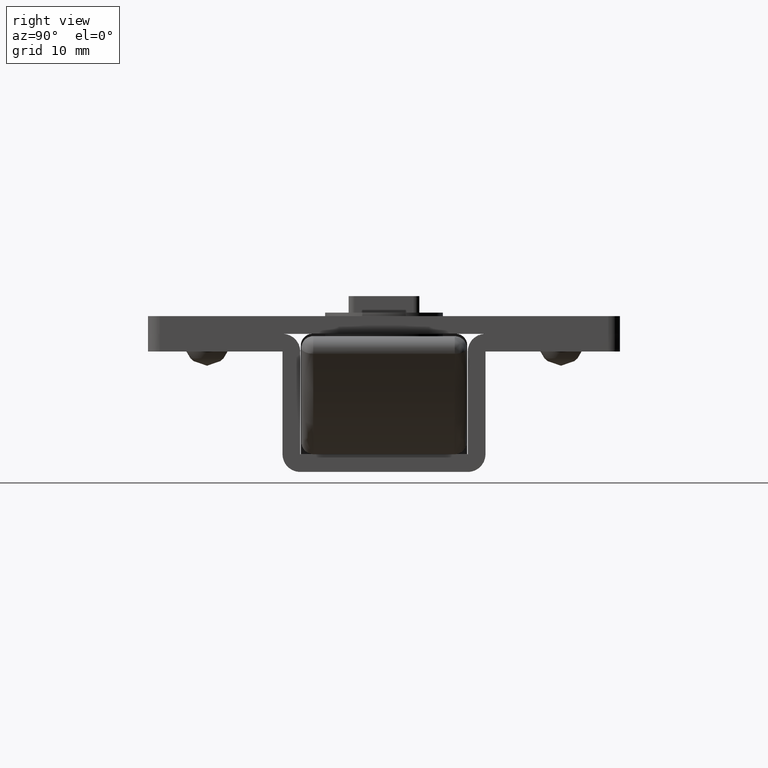
[diagram: clean part render]
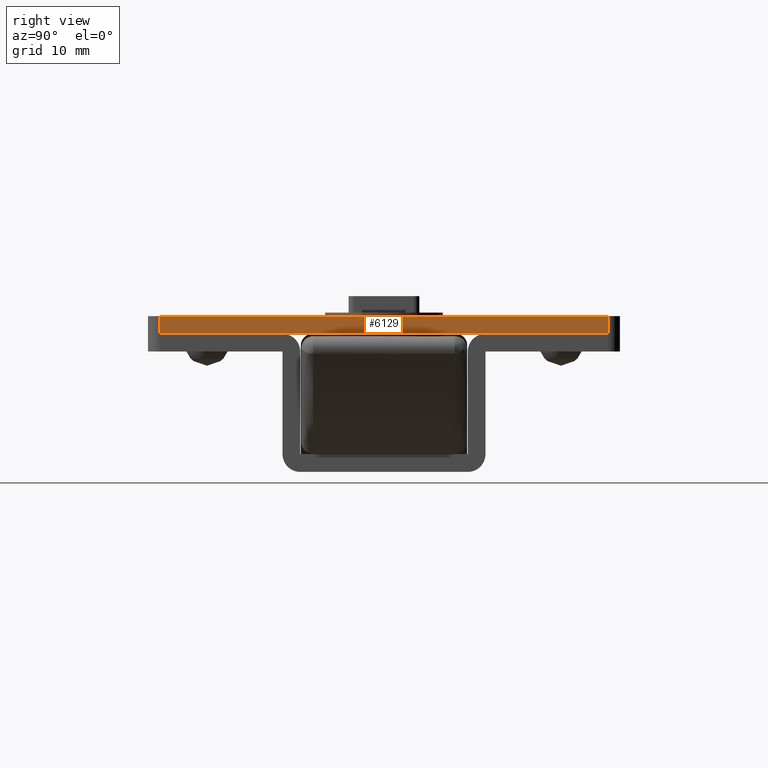
[diagram: same view with one face highlighted and labeled with its STEP entity id]
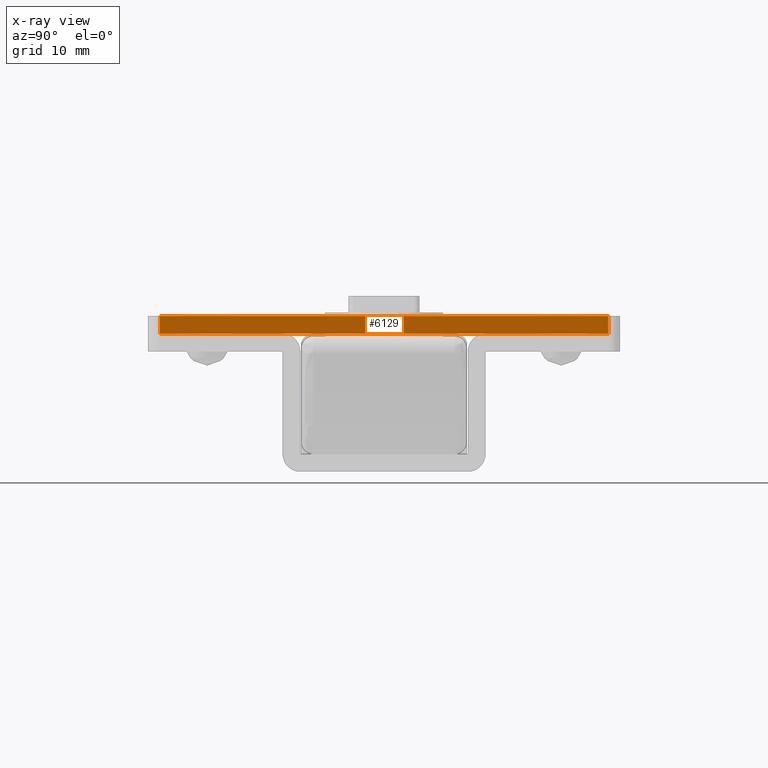
[diagram: x-ray of the same camera — body ghosted, the highlighted face saturated]
A machine part, right view. The second image highlights one B-rep face of the part: STEP entity #6129.
The next image is the same camera in x-ray: the body ghosted, the highlighted face saturated — about 0% of this face is hidden behind the body in this view.
In plain terms, the highlighted face is a freeform B-spline surface patch.
Its self-contained STEP definition (entity closure, byte-faithful):
#5808=CARTESIAN_POINT('',(4.081346E-011,19.0,11.699999999616900));
#5809=VERTEX_POINT('',#5808);
#5823=CARTESIAN_POINT('',(6.559731E-011,-18.999999999999400,11.699999999616900));
#5824=VERTEX_POINT('',#5823);
#5825=CARTESIAN_POINT('',(4.081346E-011,19.0,11.699999999616900));
#5826=CARTESIAN_POINT('',(6.559731E-011,-18.999999999999400,11.699999999616900));
#5827=QUASI_UNIFORM_CURVE('',1,(#5825,#5826),.UNSPECIFIED.,.F.,.U.);
#5828=EDGE_CURVE('',#5809,#5824,#5827,.T.);
#5944=CARTESIAN_POINT('',(6.559731E-011,-18.999999999999400,13.199999999618299));
#5945=VERTEX_POINT('',#5944);
#5957=CARTESIAN_POINT('',(4.081346E-011,19.0,13.199999999618299));
#5958=VERTEX_POINT('',#5957);
#5959=CARTESIAN_POINT('',(4.081346E-011,19.0,13.199999999618299));
#5960=CARTESIAN_POINT('',(6.559731E-011,-18.999999999999400,13.199999999618299));
#5961=QUASI_UNIFORM_CURVE('',1,(#5959,#5960),.UNSPECIFIED.,.F.,.U.);
#5962=EDGE_CURVE('',#5958,#5945,#5961,.T.);
#6104=CARTESIAN_POINT('',(6.559731E-011,-18.999999999999400,13.199999999618299));
#6105=CARTESIAN_POINT('',(6.559731E-011,-18.999999999999400,11.699999999616900));
#6106=QUASI_UNIFORM_CURVE('',1,(#6104,#6105),.UNSPECIFIED.,.F.,.U.);
#6107=EDGE_CURVE('',#5945,#5824,#6106,.T.);
#6114=CARTESIAN_POINT('',(6.683525E-011,-20.898099926347999,11.625075002524120));
#6115=CARTESIAN_POINT('',(3.957563E-011,20.898100945588020,11.625075002524120));
#6116=CARTESIAN_POINT('',(6.683525E-011,-20.898099926347999,13.274925036944211));
#6117=CARTESIAN_POINT('',(3.957563E-011,20.898100945588020,13.274925036944211));
#6118=B_SPLINE_SURFACE_WITH_KNOTS('',1,1,((#6114,#6116),(#6115,#6117)),.UNSPECIFIED.,.F.,.F.,.U.,(2,2),(2,2),(0.0,41.796200871936023),(0.041708334948495,0.958291687403247),.UNSPECIFIED.);
#6119=ORIENTED_EDGE('',*,*,#5828,.F.);
#6120=CARTESIAN_POINT('',(4.081346E-011,19.0,13.199999999618299));
#6121=CARTESIAN_POINT('',(4.081346E-011,19.0,11.699999999616900));
#6122=QUASI_UNIFORM_CURVE('',1,(#6120,#6121),.UNSPECIFIED.,.F.,.U.);
#6123=EDGE_CURVE('',#5958,#5809,#6122,.T.);
#6124=ORIENTED_EDGE('',*,*,#6123,.F.);
#6125=ORIENTED_EDGE('',*,*,#5962,.T.);
#6126=ORIENTED_EDGE('',*,*,#6107,.T.);
#6127=EDGE_LOOP('',(#6119,#6124,#6125,#6126));
#6128=FACE_OUTER_BOUND('',#6127,.T.);
#6129=ADVANCED_FACE('',(#6128),#6118,.T.);